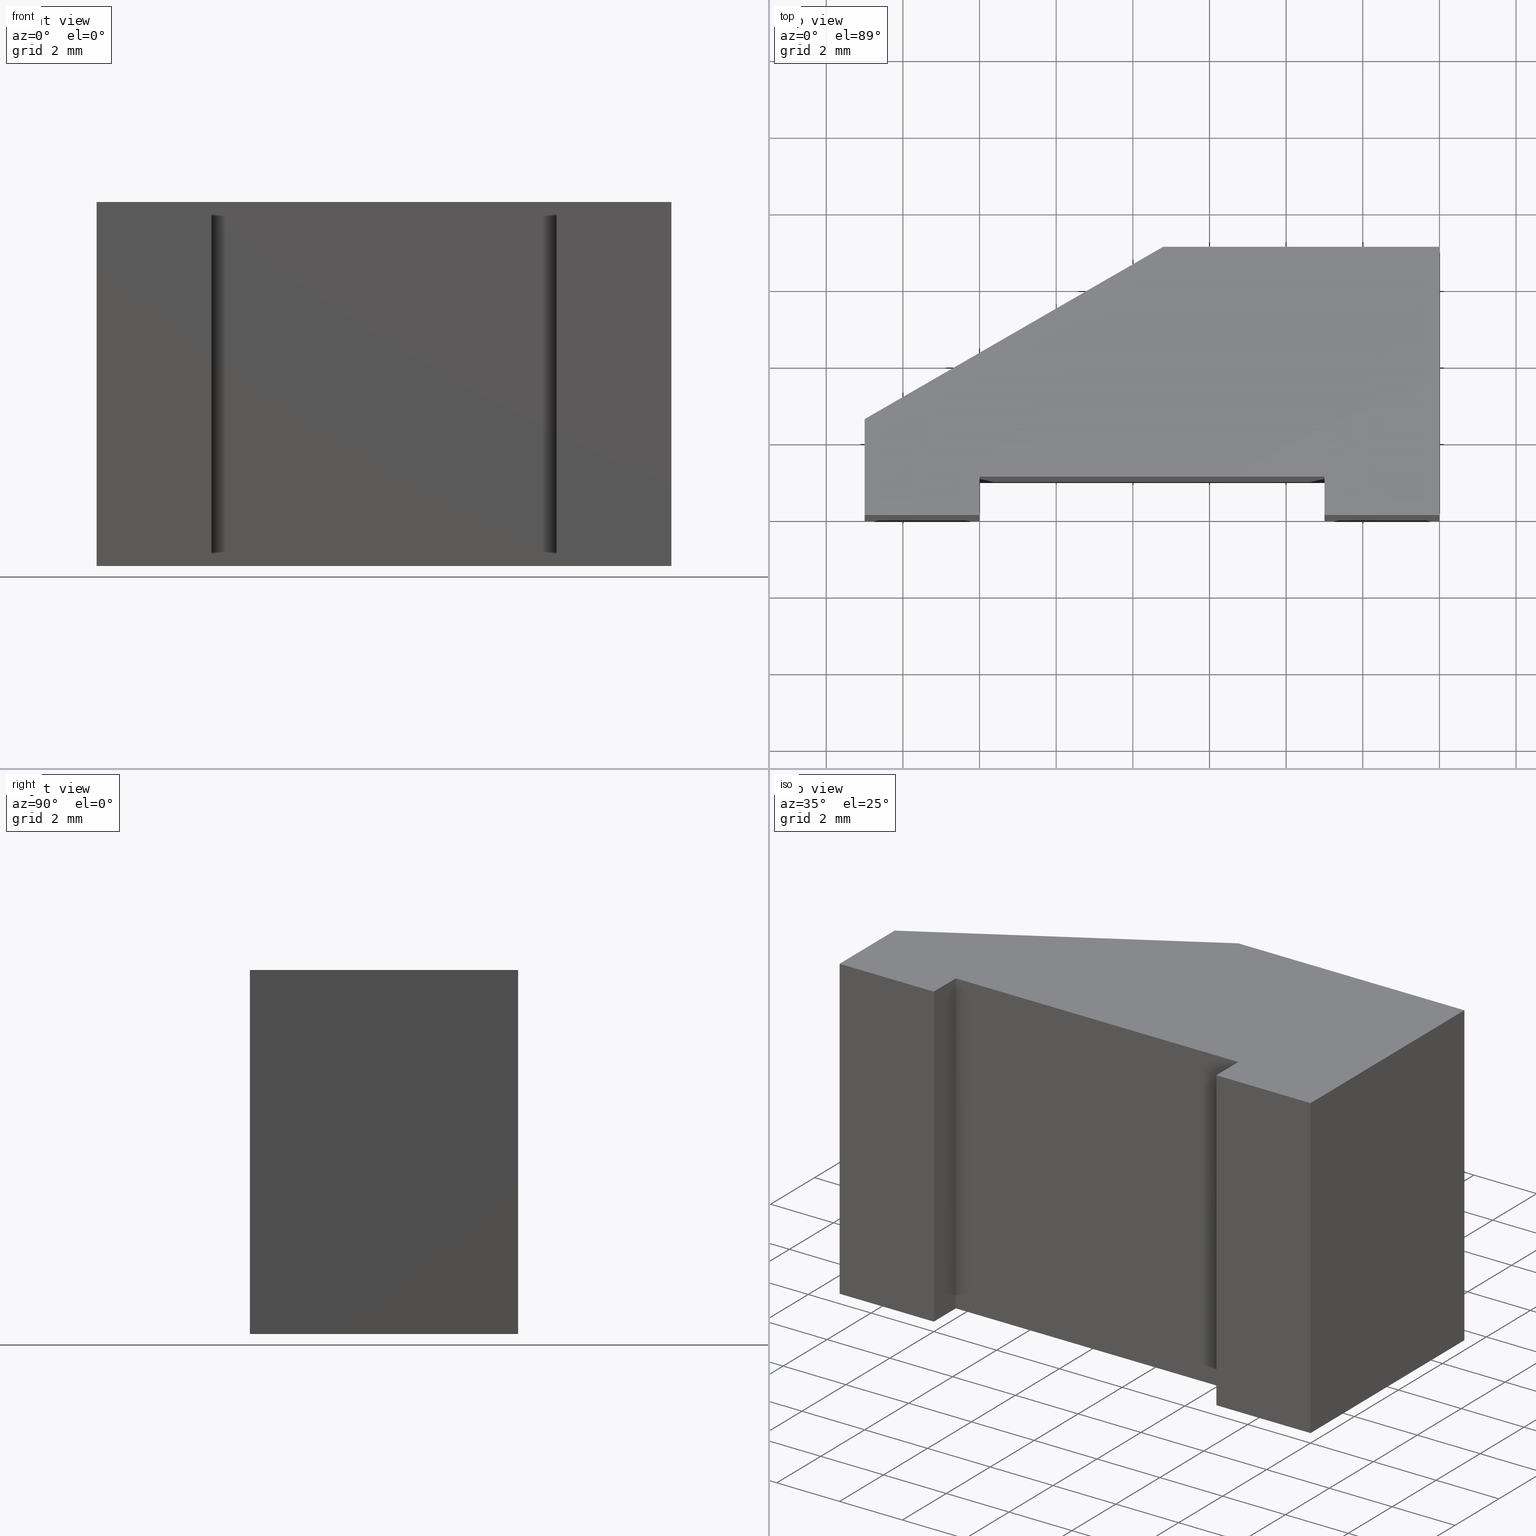
[diagram: canonical four-view strip — front | top / right | iso, engineering-drawing reading convention]
A machine part, canonical four-view strip (front | top / right | iso — engineering-drawing reading convention). The complete STEP part file that produces these views, byte-faithful:
ISO-10303-21;
HEADER;
/* Generated by software containing ST-Developer
 * from STEP Tools, Inc. (www.steptools.com) 
 */

FILE_DESCRIPTION(
/* description */ (''),
/* implementation_level */ '2;1');

FILE_NAME(
/* name */ 'E_3_01_06_06_00_WKZ-0200.stp',
/* time_stamp */ '2025-11-24T13:04:13+01:00',
/* author */ ('d.fischer'),
/* organization */ (''),
/* preprocessor_version */ 'ST-DEVELOPER v20',
/* originating_system */ 'Autodesk Inventor 2025',
/* authorisation */ '');

FILE_SCHEMA (('AUTOMOTIVE_DESIGN { 1 0 10303 214 3 1 1 }'));
ENDSEC;

DATA;
#10=MECHANICAL_DESIGN_GEOMETRIC_PRESENTATION_REPRESENTATION('',(#200,#201,
#202),#359);
#11=SHAPE_REPRESENTATION_RELATIONSHIP('SRR','None',#366,#12);
#12=ADVANCED_BREP_SHAPE_REPRESENTATION('',(#13),#358);
#13=MANIFOLD_SOLID_BREP('Volumenk\X\F6rper1',#214);
#14=FACE_OUTER_BOUND('',#25,.T.);
#15=FACE_OUTER_BOUND('',#26,.T.);
#16=FACE_OUTER_BOUND('',#27,.T.);
#17=FACE_OUTER_BOUND('',#28,.T.);
#18=FACE_OUTER_BOUND('',#29,.T.);
#19=FACE_OUTER_BOUND('',#30,.T.);
#20=FACE_OUTER_BOUND('',#31,.T.);
#21=FACE_OUTER_BOUND('',#32,.T.);
#22=FACE_OUTER_BOUND('',#33,.T.);
#23=FACE_OUTER_BOUND('',#34,.T.);
#24=FACE_OUTER_BOUND('',#35,.T.);
#25=EDGE_LOOP('',(#135,#136,#137,#138));
#26=EDGE_LOOP('',(#139,#140,#141,#142));
#27=EDGE_LOOP('',(#143,#144,#145,#146));
#28=EDGE_LOOP('',(#147,#148,#149,#150));
#29=EDGE_LOOP('',(#151,#152,#153,#154));
#30=EDGE_LOOP('',(#155,#156,#157,#158));
#31=EDGE_LOOP('',(#159,#160,#161,#162));
#32=EDGE_LOOP('',(#163,#164,#165,#166));
#33=EDGE_LOOP('',(#167,#168,#169,#170));
#34=EDGE_LOOP('',(#171,#172,#173,#174,#175,#176,#177,#178,#179));
#35=EDGE_LOOP('',(#180,#181,#182,#183,#184,#185,#186,#187,#188));
#36=LINE('',#303,#63);
#37=LINE('',#305,#64);
#38=LINE('',#307,#65);
#39=LINE('',#308,#66);
#40=LINE('',#311,#67);
#41=LINE('',#313,#68);
#42=LINE('',#314,#69);
#43=LINE('',#317,#70);
#44=LINE('',#319,#71);
#45=LINE('',#320,#72);
#46=LINE('',#323,#73);
#47=LINE('',#325,#74);
#48=LINE('',#326,#75);
#49=LINE('',#329,#76);
#50=LINE('',#331,#77);
#51=LINE('',#332,#78);
#52=LINE('',#335,#79);
#53=LINE('',#337,#80);
#54=LINE('',#338,#81);
#55=LINE('',#341,#82);
#56=LINE('',#343,#83);
#57=LINE('',#344,#84);
#58=LINE('',#347,#85);
#59=LINE('',#349,#86);
#60=LINE('',#350,#87);
#61=LINE('',#352,#88);
#62=LINE('',#353,#89);
#63=VECTOR('',#252,10.);
#64=VECTOR('',#253,10.);
#65=VECTOR('',#254,10.);
#66=VECTOR('',#255,10.);
#67=VECTOR('',#258,10.);
#68=VECTOR('',#259,10.);
#69=VECTOR('',#260,10.);
#70=VECTOR('',#263,10.);
#71=VECTOR('',#264,10.);
#72=VECTOR('',#265,10.);
#73=VECTOR('',#268,10.);
#74=VECTOR('',#269,10.);
#75=VECTOR('',#270,10.);
#76=VECTOR('',#273,10.);
#77=VECTOR('',#274,10.);
#78=VECTOR('',#275,10.);
#79=VECTOR('',#278,10.);
#80=VECTOR('',#279,10.);
#81=VECTOR('',#280,10.);
#82=VECTOR('',#283,10.);
#83=VECTOR('',#284,10.);
#84=VECTOR('',#285,10.);
#85=VECTOR('',#288,10.);
#86=VECTOR('',#289,10.);
#87=VECTOR('',#290,10.);
#88=VECTOR('',#293,10.);
#89=VECTOR('',#294,10.);
#90=VERTEX_POINT('',#301);
#91=VERTEX_POINT('',#302);
#92=VERTEX_POINT('',#304);
#93=VERTEX_POINT('',#306);
#94=VERTEX_POINT('',#310);
#95=VERTEX_POINT('',#312);
#96=VERTEX_POINT('',#316);
#97=VERTEX_POINT('',#318);
#98=VERTEX_POINT('',#322);
#99=VERTEX_POINT('',#324);
#100=VERTEX_POINT('',#328);
#101=VERTEX_POINT('',#330);
#102=VERTEX_POINT('',#334);
#103=VERTEX_POINT('',#336);
#104=VERTEX_POINT('',#340);
#105=VERTEX_POINT('',#342);
#106=VERTEX_POINT('',#346);
#107=VERTEX_POINT('',#348);
#108=EDGE_CURVE('',#90,#91,#36,.T.);
#109=EDGE_CURVE('',#92,#91,#37,.T.);
#110=EDGE_CURVE('',#92,#93,#38,.T.);
#111=EDGE_CURVE('',#93,#90,#39,.T.);
#112=EDGE_CURVE('',#91,#94,#40,.T.);
#113=EDGE_CURVE('',#95,#94,#41,.T.);
#114=EDGE_CURVE('',#95,#92,#42,.T.);
#115=EDGE_CURVE('',#94,#96,#43,.T.);
#116=EDGE_CURVE('',#97,#96,#44,.T.);
#117=EDGE_CURVE('',#97,#95,#45,.T.);
#118=EDGE_CURVE('',#96,#98,#46,.T.);
#119=EDGE_CURVE('',#99,#98,#47,.T.);
#120=EDGE_CURVE('',#99,#97,#48,.T.);
#121=EDGE_CURVE('',#98,#100,#49,.T.);
#122=EDGE_CURVE('',#101,#100,#50,.T.);
#123=EDGE_CURVE('',#101,#99,#51,.T.);
#124=EDGE_CURVE('',#100,#102,#52,.T.);
#125=EDGE_CURVE('',#103,#102,#53,.T.);
#126=EDGE_CURVE('',#103,#101,#54,.T.);
#127=EDGE_CURVE('',#102,#104,#55,.T.);
#128=EDGE_CURVE('',#105,#104,#56,.T.);
#129=EDGE_CURVE('',#105,#103,#57,.T.);
#130=EDGE_CURVE('',#104,#106,#58,.T.);
#131=EDGE_CURVE('',#107,#106,#59,.T.);
#132=EDGE_CURVE('',#107,#105,#60,.T.);
#133=EDGE_CURVE('',#106,#90,#61,.T.);
#134=EDGE_CURVE('',#93,#107,#62,.T.);
#135=ORIENTED_EDGE('',*,*,#108,.T.);
#136=ORIENTED_EDGE('',*,*,#109,.F.);
#137=ORIENTED_EDGE('',*,*,#110,.T.);
#138=ORIENTED_EDGE('',*,*,#111,.T.);
#139=ORIENTED_EDGE('',*,*,#112,.T.);
#140=ORIENTED_EDGE('',*,*,#113,.F.);
#141=ORIENTED_EDGE('',*,*,#114,.T.);
#142=ORIENTED_EDGE('',*,*,#109,.T.);
#143=ORIENTED_EDGE('',*,*,#115,.T.);
#144=ORIENTED_EDGE('',*,*,#116,.F.);
#145=ORIENTED_EDGE('',*,*,#117,.T.);
#146=ORIENTED_EDGE('',*,*,#113,.T.);
#147=ORIENTED_EDGE('',*,*,#118,.T.);
#148=ORIENTED_EDGE('',*,*,#119,.F.);
#149=ORIENTED_EDGE('',*,*,#120,.T.);
#150=ORIENTED_EDGE('',*,*,#116,.T.);
#151=ORIENTED_EDGE('',*,*,#121,.T.);
#152=ORIENTED_EDGE('',*,*,#122,.F.);
#153=ORIENTED_EDGE('',*,*,#123,.T.);
#154=ORIENTED_EDGE('',*,*,#119,.T.);
#155=ORIENTED_EDGE('',*,*,#124,.T.);
#156=ORIENTED_EDGE('',*,*,#125,.F.);
#157=ORIENTED_EDGE('',*,*,#126,.T.);
#158=ORIENTED_EDGE('',*,*,#122,.T.);
#159=ORIENTED_EDGE('',*,*,#127,.T.);
#160=ORIENTED_EDGE('',*,*,#128,.F.);
#161=ORIENTED_EDGE('',*,*,#129,.T.);
#162=ORIENTED_EDGE('',*,*,#125,.T.);
#163=ORIENTED_EDGE('',*,*,#130,.T.);
#164=ORIENTED_EDGE('',*,*,#131,.F.);
#165=ORIENTED_EDGE('',*,*,#132,.T.);
#166=ORIENTED_EDGE('',*,*,#128,.T.);
#167=ORIENTED_EDGE('',*,*,#133,.T.);
#168=ORIENTED_EDGE('',*,*,#111,.F.);
#169=ORIENTED_EDGE('',*,*,#134,.T.);
#170=ORIENTED_EDGE('',*,*,#131,.T.);
#171=ORIENTED_EDGE('',*,*,#134,.F.);
#172=ORIENTED_EDGE('',*,*,#110,.F.);
#173=ORIENTED_EDGE('',*,*,#114,.F.);
#174=ORIENTED_EDGE('',*,*,#117,.F.);
#175=ORIENTED_EDGE('',*,*,#120,.F.);
#176=ORIENTED_EDGE('',*,*,#123,.F.);
#177=ORIENTED_EDGE('',*,*,#126,.F.);
#178=ORIENTED_EDGE('',*,*,#129,.F.);
#179=ORIENTED_EDGE('',*,*,#132,.F.);
#180=ORIENTED_EDGE('',*,*,#108,.F.);
#181=ORIENTED_EDGE('',*,*,#133,.F.);
#182=ORIENTED_EDGE('',*,*,#130,.F.);
#183=ORIENTED_EDGE('',*,*,#127,.F.);
#184=ORIENTED_EDGE('',*,*,#124,.F.);
#185=ORIENTED_EDGE('',*,*,#121,.F.);
#186=ORIENTED_EDGE('',*,*,#118,.F.);
#187=ORIENTED_EDGE('',*,*,#115,.F.);
#188=ORIENTED_EDGE('',*,*,#112,.F.);
#189=PLANE('',#237);
#190=PLANE('',#238);
#191=PLANE('',#239);
#192=PLANE('',#240);
#193=PLANE('',#241);
#194=PLANE('',#242);
#195=PLANE('',#243);
#196=PLANE('',#244);
#197=PLANE('',#245);
#198=PLANE('',#246);
#199=PLANE('',#247);
#200=STYLED_ITEM('',(#376),#203);
#201=STYLED_ITEM('',(#375),#207);
#202=STYLED_ITEM('',(#375),#13);
#203=ADVANCED_FACE('',(#14),#189,.T.);
#204=ADVANCED_FACE('',(#15),#190,.T.);
#205=ADVANCED_FACE('',(#16),#191,.T.);
#206=ADVANCED_FACE('',(#17),#192,.T.);
#207=ADVANCED_FACE('',(#18),#193,.T.);
#208=ADVANCED_FACE('',(#19),#194,.T.);
#209=ADVANCED_FACE('',(#20),#195,.T.);
#210=ADVANCED_FACE('',(#21),#196,.T.);
#211=ADVANCED_FACE('',(#22),#197,.T.);
#212=ADVANCED_FACE('',(#23),#198,.F.);
#213=ADVANCED_FACE('',(#24),#199,.T.);
#214=CLOSED_SHELL('',(#203,#204,#205,#206,#207,#208,#209,#210,#211,#212,
#213));
#215=DERIVED_UNIT_ELEMENT(#218,1.);
#216=DERIVED_UNIT_ELEMENT(#361,-3.);
#217=DIMENSIONAL_EXPONENTS(0.,1.,0.,0.,0.,0.,0.);
#218=(
CONVERSION_BASED_UNIT('gram',#220)
MASS_UNIT()
NAMED_UNIT(#217)
);
#219=(
MASS_UNIT()
NAMED_UNIT(*)
SI_UNIT(.KILO.,.GRAM.)
);
#220=MASS_MEASURE_WITH_UNIT(MASS_MEASURE(0.001),#219);
#221=DERIVED_UNIT((#215,#216));
#222=MEASURE_REPRESENTATION_ITEM('density measure',
POSITIVE_RATIO_MEASURE(8.03),#221);
#223=PROPERTY_DEFINITION_REPRESENTATION(#228,#225);
#224=PROPERTY_DEFINITION_REPRESENTATION(#229,#226);
#225=REPRESENTATION('material name',(#227),#358);
#226=REPRESENTATION('density',(#222),#358);
#227=DESCRIPTIVE_REPRESENTATION_ITEM('1.4301','1.4301');
#228=PROPERTY_DEFINITION('material property','material name',#368);
#229=PROPERTY_DEFINITION('material property','density of part',#368);
#230=DATE_TIME_ROLE('creation_date');
#231=APPLIED_DATE_AND_TIME_ASSIGNMENT(#232,#230,(#368));
#232=DATE_AND_TIME(#233,#234);
#233=CALENDAR_DATE(2011,17,10);
#234=LOCAL_TIME(0,0,0.,#235);
#235=COORDINATED_UNIVERSAL_TIME_OFFSET(0,0,.BEHIND.);
#236=AXIS2_PLACEMENT_3D('',#299,#248,#249);
#237=AXIS2_PLACEMENT_3D('',#300,#250,#251);
#238=AXIS2_PLACEMENT_3D('',#309,#256,#257);
#239=AXIS2_PLACEMENT_3D('',#315,#261,#262);
#240=AXIS2_PLACEMENT_3D('',#321,#266,#267);
#241=AXIS2_PLACEMENT_3D('',#327,#271,#272);
#242=AXIS2_PLACEMENT_3D('',#333,#276,#277);
#243=AXIS2_PLACEMENT_3D('',#339,#281,#282);
#244=AXIS2_PLACEMENT_3D('',#345,#286,#287);
#245=AXIS2_PLACEMENT_3D('',#351,#291,#292);
#246=AXIS2_PLACEMENT_3D('',#354,#295,#296);
#247=AXIS2_PLACEMENT_3D('',#355,#297,#298);
#248=DIRECTION('axis',(0.,0.,1.));
#249=DIRECTION('refdir',(1.,0.,0.));
#250=DIRECTION('center_axis',(-1.85037170770859E-16,-1.,0.));
#251=DIRECTION('ref_axis',(0.,0.,-1.));
#252=DIRECTION('',(-1.,1.85037170770859E-16,0.));
#253=DIRECTION('',(0.,0.,1.));
#254=DIRECTION('',(1.,-1.85037170770859E-16,0.));
#255=DIRECTION('',(0.,0.,1.));
#256=DIRECTION('center_axis',(-1.,1.11022302462516E-15,0.));
#257=DIRECTION('ref_axis',(0.,0.,1.));
#258=DIRECTION('',(1.11022302462516E-15,1.,0.));
#259=DIRECTION('',(0.,0.,1.));
#260=DIRECTION('',(-1.11022302462516E-15,-1.,0.));
#261=DIRECTION('center_axis',(-1.2335811384724E-16,-1.,0.));
#262=DIRECTION('ref_axis',(0.,0.,-1.));
#263=DIRECTION('',(-1.,1.2335811384724E-16,0.));
#264=DIRECTION('',(0.,0.,1.));
#265=DIRECTION('',(1.,-1.2335811384724E-16,0.));
#266=DIRECTION('center_axis',(1.,-2.22044604925031E-15,0.));
#267=DIRECTION('ref_axis',(0.,0.,-1.));
#268=DIRECTION('',(-2.22044604925031E-15,-1.,0.));
#269=DIRECTION('',(0.,0.,1.));
#270=DIRECTION('',(2.22044604925031E-15,1.,0.));
#271=DIRECTION('center_axis',(-1.8503717077086E-16,-1.,0.));
#272=DIRECTION('ref_axis',(0.,0.,-1.));
#273=DIRECTION('',(-1.,1.8503717077086E-16,0.));
#274=DIRECTION('',(0.,0.,1.));
#275=DIRECTION('',(1.,-1.8503717077086E-16,0.));
#276=DIRECTION('center_axis',(-1.,0.,0.));
#277=DIRECTION('ref_axis',(0.,0.,1.));
#278=DIRECTION('',(0.,1.,0.));
#279=DIRECTION('',(0.,0.,1.));
#280=DIRECTION('',(0.,-1.,0.));
#281=DIRECTION('center_axis',(-0.5,0.866025403784439,0.));
#282=DIRECTION('ref_axis',(0.,0.,1.));
#283=DIRECTION('',(0.866025403784439,0.5,0.));
#284=DIRECTION('',(0.,0.,1.));
#285=DIRECTION('',(-0.866025403784439,-0.5,0.));
#286=DIRECTION('center_axis',(1.54074139775363E-16,1.,0.));
#287=DIRECTION('ref_axis',(0.,0.,1.));
#288=DIRECTION('',(1.,-1.54074139775363E-16,0.));
#289=DIRECTION('',(0.,0.,1.));
#290=DIRECTION('',(-1.,1.54074139775363E-16,0.));
#291=DIRECTION('center_axis',(1.,-1.58603289232165E-16,0.));
#292=DIRECTION('ref_axis',(0.,0.,-1.));
#293=DIRECTION('',(-1.58603289232165E-16,-1.,0.));
#294=DIRECTION('',(1.58603289232165E-16,1.,0.));
#295=DIRECTION('center_axis',(0.,0.,1.));
#296=DIRECTION('ref_axis',(1.,0.,0.));
#297=DIRECTION('center_axis',(0.,0.,1.));
#298=DIRECTION('ref_axis',(1.,0.,0.));
#299=CARTESIAN_POINT('',(0.,0.,0.));
#300=CARTESIAN_POINT('Origin',(0.,0.,0.));
#301=CARTESIAN_POINT('',(0.,0.,9.5));
#302=CARTESIAN_POINT('',(-3.,5.55111512312578E-16,9.5));
#303=CARTESIAN_POINT('',(-3.,5.55111512312578E-16,9.5));
#304=CARTESIAN_POINT('',(-3.,5.55111512312578E-16,0.));
#305=CARTESIAN_POINT('',(-3.,5.55111512312578E-16,0.));
#306=CARTESIAN_POINT('',(0.,0.,0.));
#307=CARTESIAN_POINT('',(-3.,5.55111512312578E-16,0.));
#308=CARTESIAN_POINT('',(0.,0.,0.));
#309=CARTESIAN_POINT('Origin',(-3.,5.55111512312578E-16,0.));
#310=CARTESIAN_POINT('',(-3.,1.,9.5));
#311=CARTESIAN_POINT('',(-3.,1.,9.5));
#312=CARTESIAN_POINT('',(-3.,1.,0.));
#313=CARTESIAN_POINT('',(-3.,1.,0.));
#314=CARTESIAN_POINT('',(-3.,1.,0.));
#315=CARTESIAN_POINT('Origin',(-3.,1.,0.));
#316=CARTESIAN_POINT('',(-12.,1.,9.5));
#317=CARTESIAN_POINT('',(-12.,1.,9.5));
#318=CARTESIAN_POINT('',(-12.,1.,0.));
#319=CARTESIAN_POINT('',(-12.,1.,0.));
#320=CARTESIAN_POINT('',(-12.,1.,0.));
#321=CARTESIAN_POINT('Origin',(-12.,1.,0.));
#322=CARTESIAN_POINT('',(-12.,2.22044604925031E-15,9.5));
#323=CARTESIAN_POINT('',(-12.,2.22044604925031E-15,9.5));
#324=CARTESIAN_POINT('',(-12.,2.22044604925031E-15,0.));
#325=CARTESIAN_POINT('',(-12.,2.22044604925031E-15,0.));
#326=CARTESIAN_POINT('',(-12.,2.22044604925031E-15,0.));
#327=CARTESIAN_POINT('Origin',(-12.,2.22044604925031E-15,0.));
#328=CARTESIAN_POINT('',(-15.,2.77555756156289E-15,9.5));
#329=CARTESIAN_POINT('',(-15.,2.77555756156289E-15,9.5));
#330=CARTESIAN_POINT('',(-15.,2.77555756156289E-15,0.));
#331=CARTESIAN_POINT('',(-15.,2.77555756156289E-15,0.));
#332=CARTESIAN_POINT('',(-15.,2.77555756156289E-15,0.));
#333=CARTESIAN_POINT('Origin',(-15.,2.77555756156289E-15,0.));
#334=CARTESIAN_POINT('',(-15.,2.5,9.5));
#335=CARTESIAN_POINT('',(-15.,2.5,9.5));
#336=CARTESIAN_POINT('',(-15.,2.5,0.));
#337=CARTESIAN_POINT('',(-15.,2.5,0.));
#338=CARTESIAN_POINT('',(-15.,2.5,0.));
#339=CARTESIAN_POINT('Origin',(-15.,2.5,0.));
#340=CARTESIAN_POINT('',(-7.20577136594005,7.,9.5));
#341=CARTESIAN_POINT('',(-7.20577136594005,7.,9.5));
#342=CARTESIAN_POINT('',(-7.20577136594005,7.,0.));
#343=CARTESIAN_POINT('',(-7.20577136594005,7.,0.));
#344=CARTESIAN_POINT('',(-7.20577136594005,7.,0.));
#345=CARTESIAN_POINT('Origin',(-7.20577136594005,7.,0.));
#346=CARTESIAN_POINT('',(1.11022302462516E-15,7.,9.5));
#347=CARTESIAN_POINT('',(1.11022302462516E-15,7.,9.5));
#348=CARTESIAN_POINT('',(1.11022302462516E-15,7.,0.));
#349=CARTESIAN_POINT('',(1.11022302462516E-15,7.,0.));
#350=CARTESIAN_POINT('',(1.11022302462516E-15,7.,0.));
#351=CARTESIAN_POINT('Origin',(1.11022302462516E-15,7.,0.));
#352=CARTESIAN_POINT('',(0.,0.,9.5));
#353=CARTESIAN_POINT('',(0.,0.,0.));
#354=CARTESIAN_POINT('Origin',(-6.81143396622565,3.06317847395006,0.));
#355=CARTESIAN_POINT('Origin',(-6.81143396622565,3.06317847395006,9.5));
#356=UNCERTAINTY_MEASURE_WITH_UNIT(LENGTH_MEASURE(0.01),#360,
'DISTANCE_ACCURACY_VALUE',
'Maximum model space distance between geometric entities at asserted c
onnectivities');
#357=UNCERTAINTY_MEASURE_WITH_UNIT(LENGTH_MEASURE(0.01),#360,
'DISTANCE_ACCURACY_VALUE',
'Maximum model space distance between geometric entities at asserted c
onnectivities');
#358=(
GEOMETRIC_REPRESENTATION_CONTEXT(3)
GLOBAL_UNCERTAINTY_ASSIGNED_CONTEXT((#356))
GLOBAL_UNIT_ASSIGNED_CONTEXT((#360,#362,#363))
REPRESENTATION_CONTEXT('','3D')
);
#359=(
GEOMETRIC_REPRESENTATION_CONTEXT(3)
GLOBAL_UNCERTAINTY_ASSIGNED_CONTEXT((#357))
GLOBAL_UNIT_ASSIGNED_CONTEXT((#360,#362,#363))
REPRESENTATION_CONTEXT('','3D')
);
#360=(
LENGTH_UNIT()
NAMED_UNIT(*)
SI_UNIT(.MILLI.,.METRE.)
);
#361=(
LENGTH_UNIT()
NAMED_UNIT(*)
SI_UNIT(.CENTI.,.METRE.)
);
#362=(
NAMED_UNIT(*)
PLANE_ANGLE_UNIT()
SI_UNIT($,.RADIAN.)
);
#363=(
NAMED_UNIT(*)
SI_UNIT($,.STERADIAN.)
SOLID_ANGLE_UNIT()
);
#364=SHAPE_DEFINITION_REPRESENTATION(#365,#366);
#365=PRODUCT_DEFINITION_SHAPE('',$,#368);
#366=SHAPE_REPRESENTATION('',(#236),#358);
#367=PRODUCT_DEFINITION_CONTEXT('part definition',#372,'design');
#368=PRODUCT_DEFINITION('WKZ-0200','E_3_01_06_06_00_WKZ-0200',#369,#367);
#369=PRODUCT_DEFINITION_FORMATION('',$,#374);
#370=PRODUCT_RELATED_PRODUCT_CATEGORY('E_3_01_06_06_00_WKZ-0200',
'E_3_01_06_06_00_WKZ-0200',(#374));
#371=APPLICATION_PROTOCOL_DEFINITION('international standard',
'automotive_design',2009,#372);
#372=APPLICATION_CONTEXT(
'Core Data for Automotive Mechanical Design Process');
#373=PRODUCT_CONTEXT('part definition',#372,'mechanical');
#374=PRODUCT('WKZ-0200','E_3_01_06_06_00_WKZ-0200',$,(#373));
#375=PRESENTATION_STYLE_ASSIGNMENT((#377));
#376=PRESENTATION_STYLE_ASSIGNMENT((#378));
#377=SURFACE_STYLE_USAGE(.BOTH.,#381);
#378=SURFACE_STYLE_USAGE(.BOTH.,#382);
#379=SURFACE_STYLE_RENDERING_WITH_PROPERTIES($,#389,(#380));
#380=SURFACE_STYLE_TRANSPARENT(0.);
#381=SURFACE_SIDE_STYLE('',(#383,#379));
#382=SURFACE_SIDE_STYLE('',(#384));
#383=SURFACE_STYLE_FILL_AREA(#385);
#384=SURFACE_STYLE_FILL_AREA(#386);
#385=FILL_AREA_STYLE('',(#387));
#386=FILL_AREA_STYLE('',(#388));
#387=FILL_AREA_STYLE_COLOUR('',#389);
#388=FILL_AREA_STYLE_COLOUR('',#390);
#389=COLOUR_RGB('',0.92156862745098,0.92156862745098,0.92156862745098);
#390=COLOUR_RGB('',0.16078431372549,0.16078431372549,0.16078431372549);
ENDSEC;
END-ISO-10303-21;
